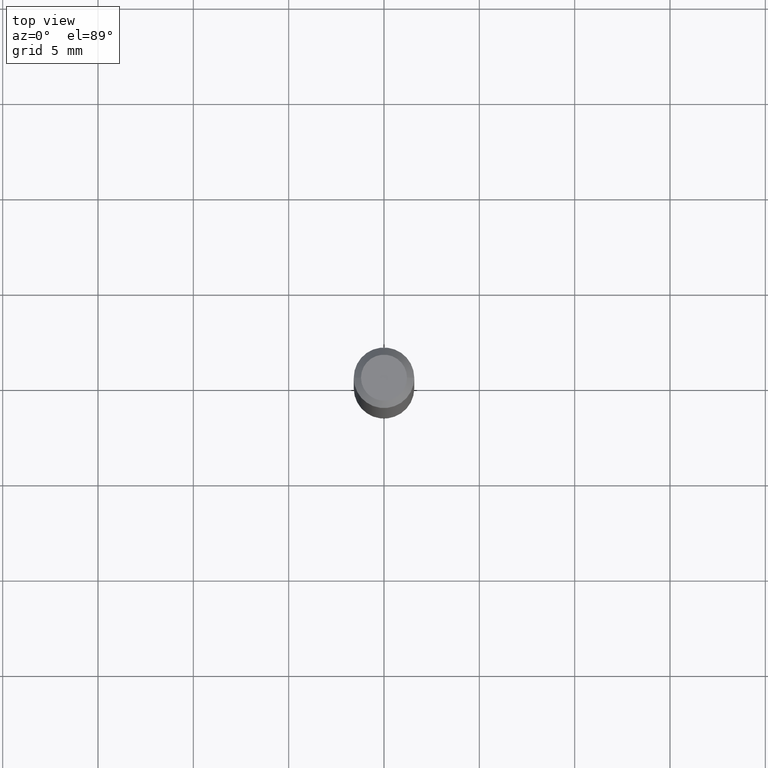
[diagram: clean part render]
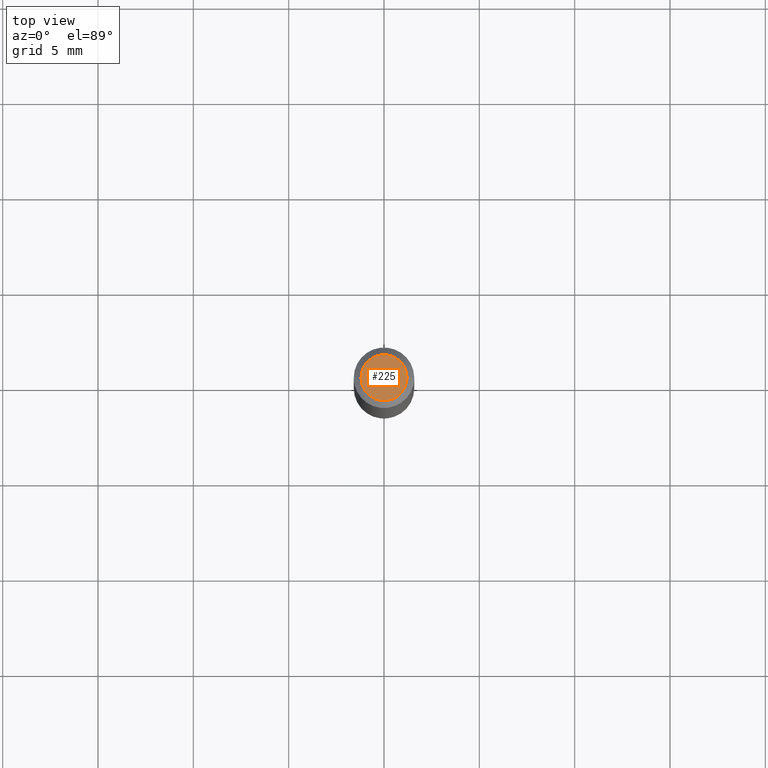
[diagram: same view with one face highlighted and labeled with its STEP entity id]
A machine part, top view. The second image highlights one B-rep face of the part: STEP entity #225.
In plain terms, the highlighted planar face has unit normal (0, -0, -1).
Its self-contained STEP definition (entity closure, byte-faithful):
#4 = CARTESIAN_POINT ( 'NONE',  ( -4.460165479722938536E-44, 6.367934238710582481E-30, 1.823848854028390842E-15 ) ) ;
#8 = CARTESIAN_POINT ( 'NONE',  ( 0.04749999999999999362, -4.035134999187546083E-16, 1.823848854028393603E-15 ) ) ;
#45 = CARTESIAN_POINT ( 'NONE',  ( -0.04749999999999999362, 3.578768372314242553E-16, 1.823848854028388475E-15 ) ) ;
#49 = AXIS2_PLACEMENT_3D ( 'NONE', #117, #406, #367 ) ;
#54 = CARTESIAN_POINT ( 'NONE',  ( -4.460165479722938536E-44, 6.367934238710582481E-30, 1.823848854028390842E-15 ) ) ;
#76 = AXIS2_PLACEMENT_3D ( 'NONE', #4, #190, #334 ) ;
#109 = CIRCLE ( 'NONE', #76, 0.04749999999999999362 ) ;
#117 = CARTESIAN_POINT ( 'NONE',  ( 3.316907271900976096E-16, 0.04749999999999999362, 7.460790634191459752E-16 ) ) ;
#119 = EDGE_CURVE ( 'NONE', #274, #201, #197, .T. ) ;
#151 = ORIENTED_EDGE ( 'NONE', *, *, #119, .T. ) ;
#156 = PLANE ( 'NONE',  #49 ) ;
#190 = DIRECTION ( 'NONE',  ( -2.445468806185136597E-29, 3.491481338843145583E-15, 1.000000000000000000 ) ) ;
#197 = CIRCLE ( 'NONE', #250, 0.04749999999999999362 ) ;
#201 = VERTEX_POINT ( 'NONE', #45 ) ;
#225 = ADVANCED_FACE ( 'NONE', ( #398 ), #156, .F. ) ;
#250 = AXIS2_PLACEMENT_3D ( 'NONE', #54, #416, #335 ) ;
#271 = EDGE_CURVE ( 'NONE', #201, #274, #109, .T. ) ;
#274 = VERTEX_POINT ( 'NONE', #8 ) ;
#334 = DIRECTION ( 'NONE',  ( 1.000000000000000000, -6.982962677686267499E-15, 5.108144071313017768E-29 ) ) ;
#335 = DIRECTION ( 'NONE',  ( 1.000000000000000000, -6.982962677686267499E-15, 5.108144071313017768E-29 ) ) ;
#367 = DIRECTION ( 'NONE',  ( -1.000000000000000000, 6.982962677686265922E-15, -4.876176775795935793E-29 ) ) ;
#398 = FACE_OUTER_BOUND ( 'NONE', #399, .T. ) ;
#399 = EDGE_LOOP ( 'NONE', ( #404, #151 ) ) ;
#404 = ORIENTED_EDGE ( 'NONE', *, *, #271, .T. ) ;
#406 = DIRECTION ( 'NONE',  ( 2.438088387897960049E-29, -3.491481338843145188E-15, -1.000000000000000000 ) ) ;
#416 = DIRECTION ( 'NONE',  ( -2.445468806185136597E-29, 3.491481338843145583E-15, 1.000000000000000000 ) ) ;